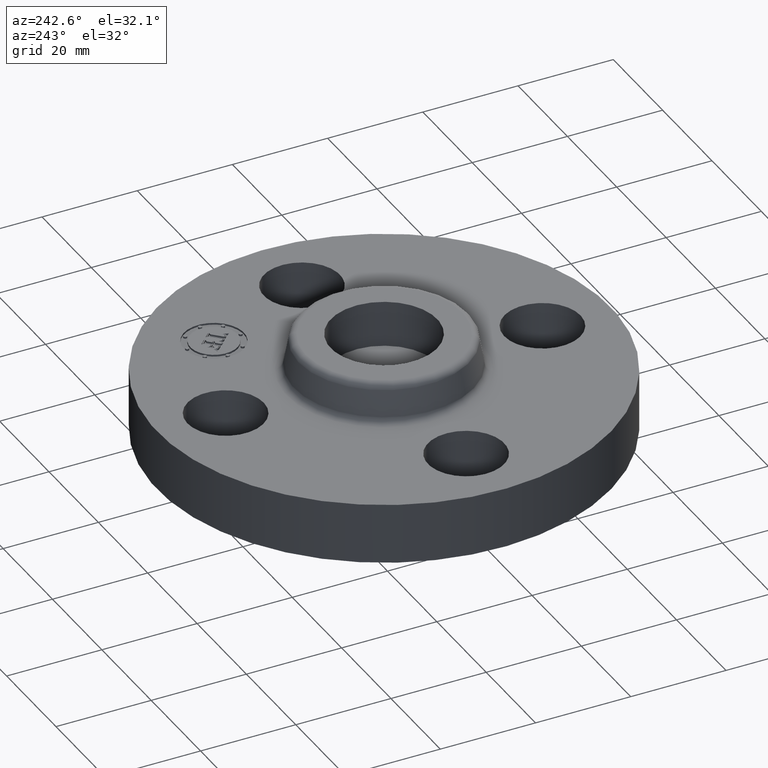
[diagram: clean part render]
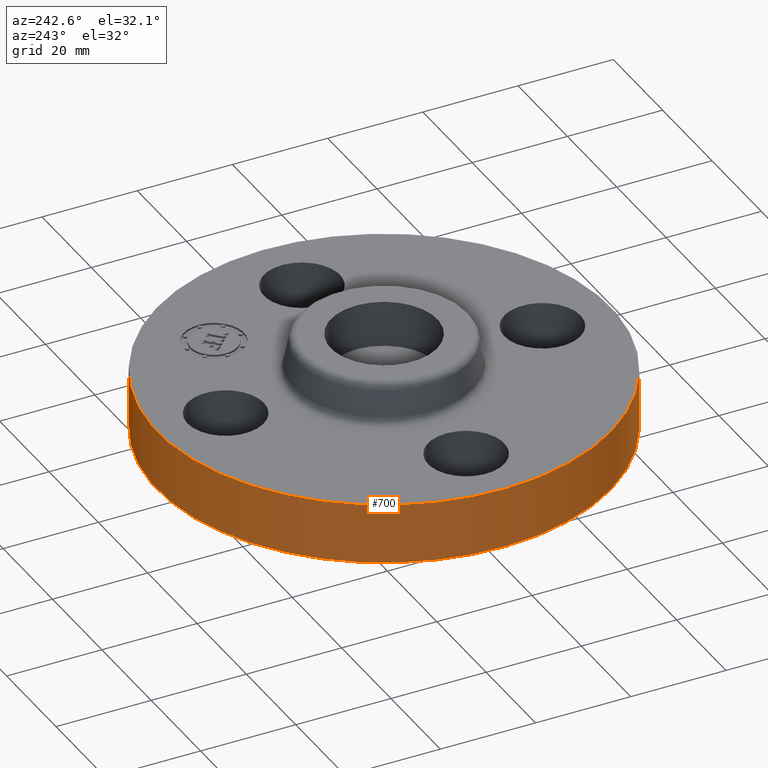
[diagram: same view with one face highlighted and labeled with its STEP entity id]
A machine part, auxiliary view. The second image highlights one B-rep face of the part: STEP entity #700.
In plain terms, the highlighted cylindrical surface (partial cylindrical patch) has radius 47.625 mm, axis along (0, 0, -1).
Its self-contained STEP definition (entity closure, byte-faithful):
#508=AXIS2_PLACEMENT_3D('Circle Axis2P3D',#506,#507,$) ;
#673=AXIS2_PLACEMENT_3D('Cylinder Axis2P3D',#670,#671,#672) ;
#684=AXIS2_PLACEMENT_3D('Circle Axis2P3D',#682,#683,$) ;
#506=CARTESIAN_POINT('Axis2P3D Location',(-3.08540594648E-011,-1.26443038017E-012,0.)) ;
#510=CARTESIAN_POINT('Vertex',(-0.898922884866,-1.64546730358,0.)) ;
#512=CARTESIAN_POINT('Vertex',(0.898922884866,1.64546730354,0.)) ;
#670=CARTESIAN_POINT('Axis2P3D Location',(0.,0.,0.373750000001)) ;
#675=CARTESIAN_POINT('Line Origine',(-0.898922884888,-1.64546730355,0.250000000001)) ;
#679=CARTESIAN_POINT('Vertex',(-0.898922884888,-1.64546730355,0.499999999997)) ;
#682=CARTESIAN_POINT('Axis2P3D Location',(0.,0.,0.500000000002)) ;
#686=CARTESIAN_POINT('Vertex',(0.898922884888,1.64546730355,0.499999999997)) ;
#689=CARTESIAN_POINT('Line Origine',(0.898922884888,1.64546730355,0.250000000001)) ;
#507=DIRECTION('Axis2P3D Direction',(0.,0.,-0.0393700787402)) ;
#671=DIRECTION('Axis2P3D Direction',(0.,0.,-0.0393700787402)) ;
#672=DIRECTION('Axis2P3D XDirection',(-0.0188750212049,-0.0345504945626,0.)) ;
#676=DIRECTION('Vector Direction',(0.,0.,-0.0393700787402)) ;
#683=DIRECTION('Axis2P3D Direction',(0.,0.,-0.0393700787402)) ;
#690=DIRECTION('Vector Direction',(0.,0.,-0.0393700787402)) ;
#677=VECTOR('Line Direction',#676,0.0393700787402) ;
#691=VECTOR('Line Direction',#690,0.0393700787402) ;
#695=ORIENTED_EDGE('',*,*,#514,.F.) ;
#696=ORIENTED_EDGE('',*,*,#681,.T.) ;
#697=ORIENTED_EDGE('',*,*,#688,.T.) ;
#698=ORIENTED_EDGE('',*,*,#693,.F.) ;
#700=ADVANCED_FACE('PartBody',(#699),#674,.T.) ;
#509=CIRCLE('generated circle',#508,1.87500000001) ;
#685=CIRCLE('generated circle',#684,1.87500000001) ;
#674=CYLINDRICAL_SURFACE('generated cylinder',#673,1.87500000001) ;
#514=EDGE_CURVE('',#511,#513,#509,.T.) ;
#681=EDGE_CURVE('',#511,#680,#678,.F.) ;
#688=EDGE_CURVE('',#680,#687,#685,.T.) ;
#693=EDGE_CURVE('',#513,#687,#692,.F.) ;
#694=EDGE_LOOP('',(#695,#696,#697,#698)) ;
#699=FACE_OUTER_BOUND('',#694,.T.) ;
#678=LINE('Line',#675,#677) ;
#692=LINE('Line',#689,#691) ;
#511=VERTEX_POINT('',#510) ;
#513=VERTEX_POINT('',#512) ;
#680=VERTEX_POINT('',#679) ;
#687=VERTEX_POINT('',#686) ;